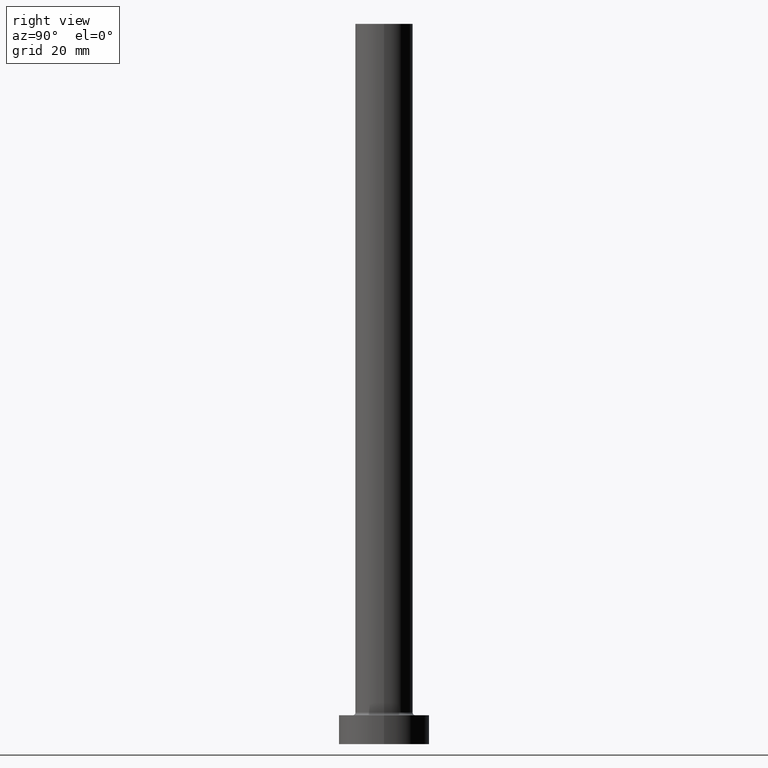
[diagram: clean part render]
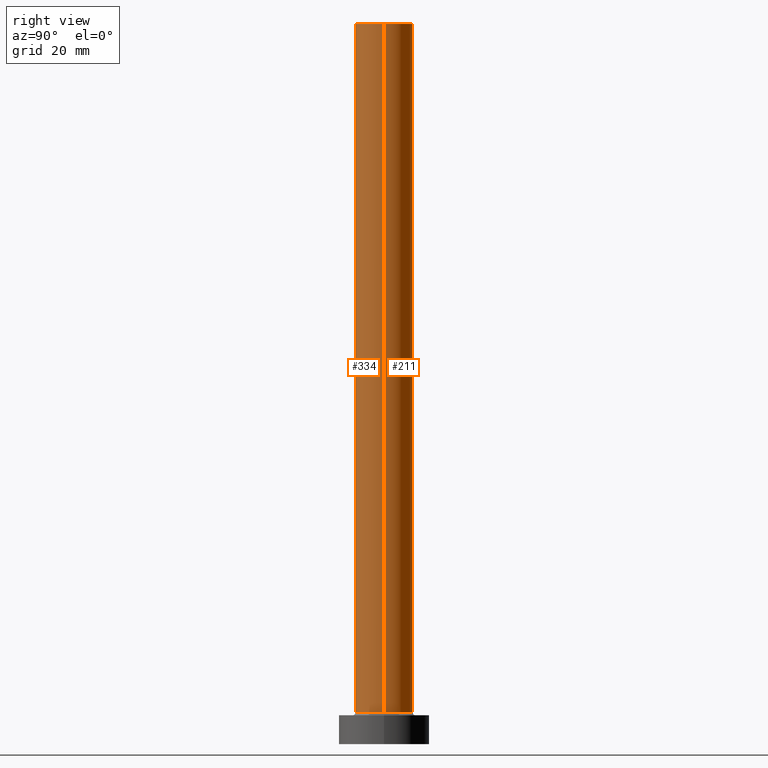
[diagram: same view with one multi-face feature highlighted, each face labeled with its STEP entity id]
A machine part, right view. The highlighted faces form ONE feature: a constant-radius fillet chain: 2 tangent blend faces with common blend radius 7 mm. The faces share edges in the B-rep.
Their STEP definitions:
[1] entity #211 (Cylinder):
#4 = CARTESIAN_POINT ( 'NONE',  ( -7.000000000000000888, 0.000000000000000000, 175.0000000000000284 ) ) ;
#16 = CIRCLE ( 'NONE', #139, 7.000000000000000888 ) ;
#20 = CARTESIAN_POINT ( 'NONE',  ( -7.000000000000000888, 0.000000000000000000, 175.0000000000000284 ) ) ;
#26 = EDGE_CURVE ( 'NONE', #288, #86, #16, .T. ) ;
#42 = DIRECTION ( 'NONE',  ( 0.000000000000000000, 0.000000000000000000, 1.000000000000000000 ) ) ;
#46 = DIRECTION ( 'NONE',  ( -0.000000000000000000, -0.000000000000000000, -1.000000000000000000 ) ) ;
#49 = CARTESIAN_POINT ( 'NONE',  ( 7.000000000000000888, 8.572527594031472204E-16, 175.0000000000000284 ) ) ;
#55 = CARTESIAN_POINT ( 'NONE',  ( 0.000000000000000000, 0.000000000000000000, 175.0000000000000284 ) ) ;
#58 = VECTOR ( 'NONE', #228, 1000.000000000000000 ) ;
#75 = CIRCLE ( 'NONE', #121, 7.000000000000000888 ) ;
#80 = CARTESIAN_POINT ( 'NONE',  ( 7.000000000000000888, 8.572527594031472204E-16, 175.0000000000000284 ) ) ;
#86 = VERTEX_POINT ( 'NONE', #4 ) ;
#94 = ORIENTED_EDGE ( 'NONE', *, *, #442, .T. ) ;
#118 = CARTESIAN_POINT ( 'NONE',  ( 0.000000000000000000, 0.000000000000000000, 7.700000000000012612 ) ) ;
#121 = AXIS2_PLACEMENT_3D ( 'NONE', #118, #339, #344 ) ;
#127 = ORIENTED_EDGE ( 'NONE', *, *, #225, .T. ) ;
#139 = AXIS2_PLACEMENT_3D ( 'NONE', #366, #42, #401 ) ;
#146 = CYLINDRICAL_SURFACE ( 'NONE', #149, 7.000000000000000888 ) ;
#149 = AXIS2_PLACEMENT_3D ( 'NONE', #55, #46, #374 ) ;
#155 = EDGE_LOOP ( 'NONE', ( #213, #127, #94, #402 ) ) ;
#181 = DIRECTION ( 'NONE',  ( -0.000000000000000000, -0.000000000000000000, -1.000000000000000000 ) ) ;
#211 = ADVANCED_FACE ( 'NONE', ( #260 ), #146, .T. ) ;
#213 = ORIENTED_EDGE ( 'NONE', *, *, #26, .F. ) ;
#220 = LINE ( 'NONE', #49, #273 ) ;
#225 = EDGE_CURVE ( 'NONE', #288, #272, #220, .T. ) ;
#228 = DIRECTION ( 'NONE',  ( -0.000000000000000000, -0.000000000000000000, -1.000000000000000000 ) ) ;
#236 = VERTEX_POINT ( 'NONE', #447 ) ;
#260 = FACE_OUTER_BOUND ( 'NONE', #155, .T. ) ;
#272 = VERTEX_POINT ( 'NONE', #444 ) ;
#273 = VECTOR ( 'NONE', #181, 1000.000000000000000 ) ;
#280 = EDGE_CURVE ( 'NONE', #86, #236, #408, .T. ) ;
#288 = VERTEX_POINT ( 'NONE', #80 ) ;
#339 = DIRECTION ( 'NONE',  ( 0.000000000000000000, 0.000000000000000000, 1.000000000000000000 ) ) ;
#344 = DIRECTION ( 'NONE',  ( 1.000000000000000000, 0.000000000000000000, 0.000000000000000000 ) ) ;
#366 = CARTESIAN_POINT ( 'NONE',  ( 0.000000000000000000, 0.000000000000000000, 175.0000000000000284 ) ) ;
#374 = DIRECTION ( 'NONE',  ( -1.000000000000000000, 0.000000000000000000, 0.000000000000000000 ) ) ;
#401 = DIRECTION ( 'NONE',  ( 1.000000000000000000, 0.000000000000000000, 0.000000000000000000 ) ) ;
#402 = ORIENTED_EDGE ( 'NONE', *, *, #280, .F. ) ;
#408 = LINE ( 'NONE', #20, #58 ) ;
#442 = EDGE_CURVE ( 'NONE', #272, #236, #75, .T. ) ;
#444 = CARTESIAN_POINT ( 'NONE',  ( 7.000000000000000888, 8.572527594031472204E-16, 7.700000000000012612 ) ) ;
#447 = CARTESIAN_POINT ( 'NONE',  ( -7.000000000000000888, 0.000000000000000000, 7.700000000000012612 ) ) ;
[2] entity #334 (Cylinder):
#3 = DIRECTION ( 'NONE',  ( 1.000000000000000000, 0.000000000000000000, 0.000000000000000000 ) ) ;
#4 = CARTESIAN_POINT ( 'NONE',  ( -7.000000000000000888, 0.000000000000000000, 175.0000000000000284 ) ) ;
#5 = ORIENTED_EDGE ( 'NONE', *, *, #225, .F. ) ;
#20 = CARTESIAN_POINT ( 'NONE',  ( -7.000000000000000888, 0.000000000000000000, 175.0000000000000284 ) ) ;
#24 = AXIS2_PLACEMENT_3D ( 'NONE', #168, #247, #3 ) ;
#49 = CARTESIAN_POINT ( 'NONE',  ( 7.000000000000000888, 8.572527594031472204E-16, 175.0000000000000284 ) ) ;
#58 = VECTOR ( 'NONE', #228, 1000.000000000000000 ) ;
#66 = EDGE_CURVE ( 'NONE', #86, #288, #167, .T. ) ;
#80 = CARTESIAN_POINT ( 'NONE',  ( 7.000000000000000888, 8.572527594031472204E-16, 175.0000000000000284 ) ) ;
#81 = CIRCLE ( 'NONE', #164, 7.000000000000000888 ) ;
#86 = VERTEX_POINT ( 'NONE', #4 ) ;
#90 = CYLINDRICAL_SURFACE ( 'NONE', #382, 7.000000000000000888 ) ;
#126 = FACE_OUTER_BOUND ( 'NONE', #254, .T. ) ;
#154 = DIRECTION ( 'NONE',  ( -0.000000000000000000, -0.000000000000000000, -1.000000000000000000 ) ) ;
#164 = AXIS2_PLACEMENT_3D ( 'NONE', #414, #223, #376 ) ;
#167 = CIRCLE ( 'NONE', #24, 7.000000000000000888 ) ;
#168 = CARTESIAN_POINT ( 'NONE',  ( 0.000000000000000000, 0.000000000000000000, 175.0000000000000284 ) ) ;
#181 = DIRECTION ( 'NONE',  ( -0.000000000000000000, -0.000000000000000000, -1.000000000000000000 ) ) ;
#220 = LINE ( 'NONE', #49, #273 ) ;
#223 = DIRECTION ( 'NONE',  ( 0.000000000000000000, 0.000000000000000000, 1.000000000000000000 ) ) ;
#225 = EDGE_CURVE ( 'NONE', #288, #272, #220, .T. ) ;
#228 = DIRECTION ( 'NONE',  ( -0.000000000000000000, -0.000000000000000000, -1.000000000000000000 ) ) ;
#236 = VERTEX_POINT ( 'NONE', #447 ) ;
#247 = DIRECTION ( 'NONE',  ( 0.000000000000000000, 0.000000000000000000, 1.000000000000000000 ) ) ;
#254 = EDGE_LOOP ( 'NONE', ( #5, #391, #328, #362 ) ) ;
#272 = VERTEX_POINT ( 'NONE', #444 ) ;
#273 = VECTOR ( 'NONE', #181, 1000.000000000000000 ) ;
#277 = DIRECTION ( 'NONE',  ( -1.000000000000000000, 0.000000000000000000, 0.000000000000000000 ) ) ;
#280 = EDGE_CURVE ( 'NONE', #86, #236, #408, .T. ) ;
#288 = VERTEX_POINT ( 'NONE', #80 ) ;
#306 = EDGE_CURVE ( 'NONE', #236, #272, #81, .T. ) ;
#328 = ORIENTED_EDGE ( 'NONE', *, *, #280, .T. ) ;
#334 = ADVANCED_FACE ( 'NONE', ( #126 ), #90, .T. ) ;
#362 = ORIENTED_EDGE ( 'NONE', *, *, #306, .T. ) ;
#376 = DIRECTION ( 'NONE',  ( 1.000000000000000000, 0.000000000000000000, 0.000000000000000000 ) ) ;
#381 = CARTESIAN_POINT ( 'NONE',  ( 0.000000000000000000, 0.000000000000000000, 175.0000000000000284 ) ) ;
#382 = AXIS2_PLACEMENT_3D ( 'NONE', #381, #154, #277 ) ;
#391 = ORIENTED_EDGE ( 'NONE', *, *, #66, .F. ) ;
#408 = LINE ( 'NONE', #20, #58 ) ;
#414 = CARTESIAN_POINT ( 'NONE',  ( 0.000000000000000000, 0.000000000000000000, 7.700000000000012612 ) ) ;
#444 = CARTESIAN_POINT ( 'NONE',  ( 7.000000000000000888, 8.572527594031472204E-16, 7.700000000000012612 ) ) ;
#447 = CARTESIAN_POINT ( 'NONE',  ( -7.000000000000000888, 0.000000000000000000, 7.700000000000012612 ) ) ;